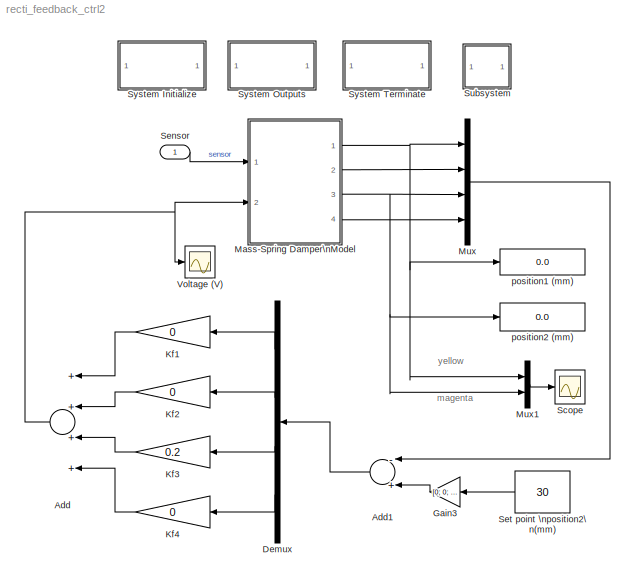
MODEL recti_feedback_ctrl2
KIND model
BLOCK [Sum] Add
  InputSameDT = off
  Inputs = ++++
  OutDataType = sfix(16)
  OutDataTypeMode = Inherit via internal rule
  OutDataTypeStr = Inherit: Inherit via internal rule
  OutScaling = 2^-10
  Ports = [4, 1]
  SID = 2
  SaturateOnIntegerOverflow = off
BLOCK [Sum] Add1
  InputSameDT = off
  Inputs = -+
  OutDataType = sfix(16)
  OutDataTypeMode = Inherit via internal rule
  OutDataTypeStr = Inherit: Inherit via internal rule
  OutScaling = 2^-10
  Ports = [2, 1]
  SID = 3
  SaturateOnIntegerOverflow = off
BLOCK [Demux] Demux
  DisplayOption = bar
  Ports = [1, 4]
  SID = 4
BLOCK [Gain] Gain3
  Gain = [0; 0; 1; 0]
  OutDataType = sfix(16)
  OutDataTypeMode = Inherit via internal rule
  OutDataTypeStr = Inherit: Inherit via internal rule
  OutScaling = 2^0
  ParamDataTypeStr = Inherit: Inherit via internal rule
  ParameterDataType = sfix(16)
  ParameterDataTypeMode = Inherit via internal rule
  ParameterScaling = 2^0
  SID = 5
  SaturateOnIntegerOverflow = off
BLOCK [Gain] Kf1
  Gain = 0
  OutDataType = sfix(16)
  OutDataTypeMode = Inherit via internal rule
  OutDataTypeStr = Inherit: Inherit via internal rule
  OutScaling = 2^0
  ParamDataTypeStr = Inherit: Inherit via internal rule
  ParameterDataType = sfix(16)
  ParameterDataTypeMode = Inherit via internal rule
  ParameterScaling = 2^0
  SID = 6
  SaturateOnIntegerOverflow = off
BLOCK [Gain] Kf2
  Gain = 0
  OutDataType = sfix(16)
  OutDataTypeMode = Inherit via internal rule
  OutDataTypeStr = Inherit: Inherit via internal rule
  OutScaling = 2^0
  ParamDataTypeStr = Inherit: Inherit via internal rule
  ParameterDataType = sfix(16)
  ParameterDataTypeMode = Inherit via internal rule
  ParameterScaling = 2^0
  SID = 7
  SaturateOnIntegerOverflow = off
BLOCK [Gain] Kf3
  Gain = 0.2
  OutDataType = sfix(16)
  OutDataTypeMode = Inherit via internal rule
  OutDataTypeStr = Inherit: Inherit via internal rule
  OutScaling = 2^0
  ParamDataTypeStr = Inherit: Inherit via internal rule
  ParameterDataType = sfix(16)
  ParameterDataTypeMode = Inherit via internal rule
  ParameterScaling = 2^0
  SID = 8
  SaturateOnIntegerOverflow = off
BLOCK [Gain] Kf4
  Gain = 0
  OutDataType = sfix(16)
  OutDataTypeMode = Inherit via internal rule
  OutDataTypeStr = Inherit: Inherit via internal rule
  OutScaling = 2^0
  ParamDataTypeStr = Inherit: Inherit via internal rule
  ParameterDataType = sfix(16)
  ParameterDataTypeMode = Inherit via internal rule
  ParameterScaling = 2^0
  SID = 9
  SampleTime = 0
  SaturateOnIntegerOverflow = off
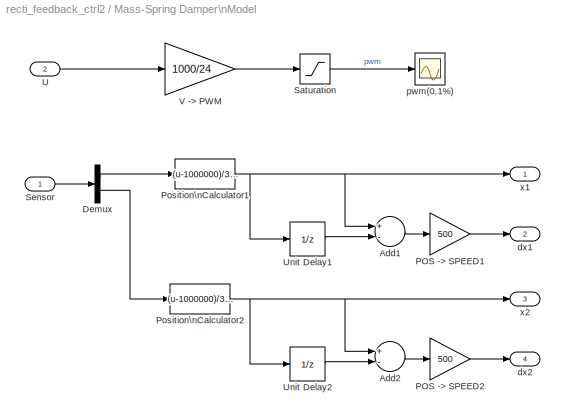
BLOCK [SubSystem] Mass-Spring Damper\nModel
  FunctionWithSeparateData = off
  MaskHideContents = off
  MinAlgLoopOccurrences = off
  Opaque = off
  Ports = [2, 4]
  PropExecContextOutsideSubsystem = off
  RTWSystemCode = Auto
  RequestExecContextInheritance = off
  SID = 10
BLOCK [Sum] Mass-Spring Damper\nModel/Add1
  InputSameDT = off
  Inputs = +-
  OutDataType = sfix(16)
  OutDataTypeMode = Inherit via internal rule
  OutDataTypeStr = Inherit: Inherit via internal rule
  OutScaling = 2^-10
  Ports = [2, 1]
  SID = 13
  SaturateOnIntegerOverflow = off
BLOCK [Sum] Mass-Spring Damper\nModel/Add2
  InputSameDT = off
  Inputs = +-
  OutDataType = sfix(16)
  OutDataTypeMode = Inherit via internal rule
  OutDataTypeStr = Inherit: Inherit via internal rule
  OutScaling = 2^-10
  Ports = [2, 1]
  SID = 14
  SaturateOnIntegerOverflow = off
BLOCK [Demux] Mass-Spring Damper\nModel/Demux
  DisplayOption = bar
  Outputs = 2
  Ports = [1, 2]
  SID = 15
BLOCK [Gain] Mass-Spring Damper\nModel/POS -> SPEED1
  Gain = 500
  OutDataType = sfix(16)
  OutDataTypeMode = Inherit via internal rule
  OutDataTypeStr = Inherit: Inherit via internal rule
  OutScaling = 2^0
  ParameterDataType = sfix(16)
  ParameterScaling = 2^0
  SID = 16
  SaturateOnIntegerOverflow = off
BLOCK [Gain] Mass-Spring Damper\nModel/POS -> SPEED2
  Gain = 500
  OutDataType = sfix(16)
  OutDataTypeMode = Inherit via internal rule
  OutDataTypeStr = Inherit: Inherit via internal rule
  OutScaling = 2^0
  ParameterDataType = sfix(16)
  ParameterScaling = 2^0
  SID = 17
  SaturateOnIntegerOverflow = off
BLOCK [Fcn] Mass-Spring Damper\nModel/Position\nCalculator1
  Expr = (u-1000000)/39.44
  SID = 18
BLOCK [Fcn] Mass-Spring Damper\nModel/Position\nCalculator2
  Expr = (u-1000000)/39.44
  SID = 19
BLOCK [Saturate] Mass-Spring Damper\nModel/Saturation
  LowerLimit = 0
  SID = 20
  UpperLimit = 800
BLOCK [Inport] Mass-Spring Damper\nModel/Sensor
  IconDisplay = Port number
  OutDataType = sfix(16)
  OutScaling = 2^0
  PortDimensions = 2
  SID = 11
BLOCK [Inport] Mass-Spring Damper\nModel/U
  IconDisplay = Port number
  OutDataType = sfix(16)
  OutScaling = 2^0
  Port = 2
  PortDimensions = 1
  SID = 12
BLOCK [UnitDelay] Mass-Spring Damper\nModel/Unit Delay1
  SID = 21
  SampleTime = -1
BLOCK [UnitDelay] Mass-Spring Damper\nModel/Unit Delay2
  SID = 22
  SampleTime = -1
BLOCK [Gain] Mass-Spring Damper\nModel/V -> PWM
  Gain = 1000/24
  OutDataType = sfix(16)
  OutDataTypeMode = Inherit via internal rule
  OutDataTypeStr = Inherit: Inherit via internal rule
  OutScaling = 2^0
  ParameterDataType = sfix(16)
  ParameterScaling = 2^0
  SID = 23
  SaturateOnIntegerOverflow = off
BLOCK [Outport] Mass-Spring Damper\nModel/dx1
  IconDisplay = Port number
  OutDataType = sfix(16)
  OutScaling = 2^0
  Port = 2
  SID = 26
BLOCK [Outport] Mass-Spring Damper\nModel/dx2
  IconDisplay = Port number
  OutDataType = sfix(16)
  OutScaling = 2^0
  Port = 4
  SID = 28
BLOCK [Scope] Mass-Spring Damper\nModel/pwm(0.1%)
  DataFormat = Array
  Floating = off
  LimitDataPoints = off
  NumInputPorts = 1
  Ports = [1]
  SID = 24
  SampleTime = 0
  SaveName = ScopeData3
  SaveToWorkspace = on
  YMax = 1100
  YMin = -1100
BLOCK [Outport] Mass-Spring Damper\nModel/x1
  IconDisplay = Port number
  OutDataType = sfix(16)
  OutScaling = 2^0
  SID = 25
BLOCK [Outport] Mass-Spring Damper\nModel/x2
  IconDisplay = Port number
  OutDataType = sfix(16)
  OutScaling = 2^0
  Port = 3
  SID = 27
BLOCK [Mux] Mux
  DisplayOption = bar
  Ports = [4, 1]
  SID = 29
BLOCK [Mux] Mux1
  DisplayOption = bar
  Inputs = 2
  Ports = [2, 1]
  SID = 30
BLOCK [Scope] Scope
  DataFormat = StructureWithTime
  Floating = off
  LimitDataPoints = off
  NumInputPorts = 1
  Ports = [1]
  SID = 31
  SampleTime = 0
  SaveToWorkspace = on
  YMax = 700
  YMin = 0
BLOCK [Inport] Sensor
  IconDisplay = Port number
  OutDataType = sfix(16)
  OutScaling = 2^0
  PortDimensions = 2
  SID = 1
BLOCK [Constant] Set point \nposition2\n(mm)
  OutDataType = sfix(16)
  OutScaling = 2^0
  SID = 32
  Value = 30
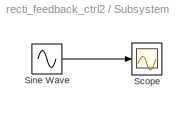
BLOCK [SubSystem] Subsystem
  FunctionWithSeparateData = off
  MaskHideContents = off
  MinAlgLoopOccurrences = off
  Opaque = off
  Ports = []
  PropExecContextOutsideSubsystem = off
  RTWSystemCode = Auto
  RequestExecContextInheritance = off
  SID = 39
  TreatAsAtomicUnit = on
BLOCK [Scope] Subsystem/Scope
  DataFormat = StructureWithTime
  Floating = off
  NumInputPorts = 1
  Ports = [1]
  SID = 40
  SampleTime = 0
  SaveName = ScopeData1
BLOCK [Sin] Subsystem/Sine Wave
  Amplitude = 1
  Bias = 0
  Frequency = 1
  Offset = 0
  Phase = 0
  Ports = [0, 1]
  SID = 41
  SampleTime = 0
  Samples = 10
BLOCK [SubSystem] System Initialize
  CopyFcn = cccopyfcn(gcb)
  FunctionWithSeparateData = off
  MaskDescription = Add code to a systems Initialize function
  MaskDisplay = disp('System\\nInitialize');
  MaskEnableString = off
  MaskHelp = This block contains text fields to insert custom user code sections at the declaration, execution and exit sections of the systems initialize function.  By placing this block inside a subsytem, the custom user code will appear in that subsystems function.
  MaskHideContents = off
  MaskIconFrame = on
  MaskIconOpaque = on
  MaskIconRotate = none
  MaskIconUnits = autoscale
  MaskPortRotate = default
  MaskPromptString = Mask Parameter 1:
  MaskStyleString = edit
  MaskToolTipString = on
  MaskTunableValueString = on
  MaskType = System Initialize
  MaskValueString = 0
  MaskVariables = ShowInLibBrowser=@1;
  MaskVisibilityString = off
  MinAlgLoopOccurrences = off
  Opaque = off
  OpenFcn = ccopenfcn('System Initialize Function')
  Ports = []
  PropExecContextOutsideSubsystem = off
  RTWSystemCode = Auto
  RequestExecContextInheritance = off
  SID = 33
BLOCK [SubSystem] System Outputs
  CopyFcn = cccopyfcn(gcb)
  FunctionWithSeparateData = off
  MaskDescription = Add code to a systems Outputs function
  MaskDisplay = disp('System\\nOutputs');
  MaskEnableString = off
  MaskHelp = This block contains text fields to insert custom user code sections at the declaration, execution and exit sections of the systems outputs function.  By placing this block inside a subsytem, the custom user code will appear in that subsystems function.
  MaskHideContents = off
  MaskIconFrame = on
  MaskIconOpaque = on
  MaskIconRotate = none
  MaskIconUnits = autoscale
  MaskPortRotate = default
  MaskPromptString = Mask Parameter 1:
  MaskStyleString = edit
  MaskToolTipString = on
  MaskTunableValueString = on
  MaskType = System Outputs
  MaskValueString = 0
  MaskVariables = ShowInLibBrowser=@1;
  MaskVisibilityString = off
  MinAlgLoopOccurrences = off
  Opaque = off
  OpenFcn = ccopenfcn('System Outputs Function')
  Ports = []
  PropExecContextOutsideSubsystem = off
  RTWSystemCode = Auto
  RequestExecContextInheritance = off
  SID = 34
BLOCK [SubSystem] System Terminate
  CopyFcn = cccopyfcn(gcb)
  FunctionWithSeparateData = off
  MaskDescription = Add code to a systems Terminate function
  MaskDisplay = disp('System\\nTerminate');
  MaskEnableString = off
  MaskHelp = This block contains text fields to insert custom user code sections at the declaration, execution and exit sections of the systems terminate function.  By placing this block inside a subsytem, the custom user code will appear in that subsystems function.
  MaskHideContents = off
  MaskIconFrame = on
  MaskIconOpaque = on
  MaskIconRotate = none
  MaskIconUnits = autoscale
  MaskPortRotate = default
  MaskPromptString = Mask Parameter 1:
  MaskStyleString = edit
  MaskToolTipString = on
  MaskTunableValueString = on
  MaskType = System Terminate
  MaskValueString = 0
  MaskVariables = ShowInLibBrowser=@1;
  MaskVisibilityString = off
  MinAlgLoopOccurrences = off
  Opaque = off
  OpenFcn = ccopenfcn('System Terminate Function')
  Ports = []
  PropExecContextOutsideSubsystem = off
  RTWSystemCode = Auto
  RequestExecContextInheritance = off
  SID = 35
BLOCK [Scope] Voltage (V)
  DataFormat = Array
  Floating = off
  LimitDataPoints = off
  NumInputPorts = 1
  Ports = [1]
  SID = 36
  SampleTime = 0
  SaveName = ScopeData2
  SaveToWorkspace = on
  YMax = 700
  YMin = 0
BLOCK [Display] position1 (mm)
  Decimation = 1
  Lockdown = off
  Ports = [1]
  SID = 37
BLOCK [Display] position2 (mm)
  Decimation = 1
  Lockdown = off
  Ports = [1]
  SID = 38
ANNOTATION (root): magenta
ANNOTATION (root): yellow
LINE Add1:1 -> Demux:1
NET Add:1 -> Mass-Spring Damper\nModel:2, Voltage (V):1
LINE Demux:1 -> Kf1:1
LINE Demux:2 -> Kf2:1
LINE Demux:3 -> Kf3:1
LINE Demux:4 -> Kf4:1
LINE Gain3:1 -> Add1:2
LINE Kf1:1 -> Add:1
LINE Kf2:1 -> Add:2
LINE Kf3:1 -> Add:3
LINE Kf4:1 -> Add:4
LINE Mass-Spring Damper\nModel/Add1:1 -> Mass-Spring Damper\nModel/POS -> SPEED1:1
LINE Mass-Spring Damper\nModel/Add2:1 -> Mass-Spring Damper\nModel/POS -> SPEED2:1
LINE Mass-Spring Damper\nModel/Demux:1 -> Mass-Spring Damper\nModel/Position\nCalculator1:1
LINE Mass-Spring Damper\nModel/Demux:2 -> Mass-Spring Damper\nModel/Position\nCalculator2:1
LINE Mass-Spring Damper\nModel/POS -> SPEED1:1 -> Mass-Spring Damper\nModel/dx1:1
LINE Mass-Spring Damper\nModel/POS -> SPEED2:1 -> Mass-Spring Damper\nModel/dx2:1
NET Mass-Spring Damper\nModel/Position\nCalculator1:1 -> Mass-Spring Damper\nModel/Add1:1, Mass-Spring Damper\nModel/Unit Delay1:1, Mass-Spring Damper\nModel/x1:1
NET Mass-Spring Damper\nModel/Position\nCalculator2:1 -> Mass-Spring Damper\nModel/Add2:1, Mass-Spring Damper\nModel/Unit Delay2:1, Mass-Spring Damper\nModel/x2:1
LINE Mass-Spring Damper\nModel/Saturation:1 -> Mass-Spring Damper\nModel/pwm(0.1%):1
LINE Mass-Spring Damper\nModel/Sensor:1 -> Mass-Spring Damper\nModel/Demux:1
LINE Mass-Spring Damper\nModel/U:1 -> Mass-Spring Damper\nModel/V -> PWM:1
LINE Mass-Spring Damper\nModel/Unit Delay1:1 -> Mass-Spring Damper\nModel/Add1:2
LINE Mass-Spring Damper\nModel/Unit Delay2:1 -> Mass-Spring Damper\nModel/Add2:2
LINE Mass-Spring Damper\nModel/V -> PWM:1 -> Mass-Spring Damper\nModel/Saturation:1
NET Mass-Spring Damper\nModel:1 -> Mux1:1, Mux:1, position1 (mm):1
LINE Mass-Spring Damper\nModel:2 -> Mux:2
NET Mass-Spring Damper\nModel:3 -> Mux1:2, Mux:3, position2 (mm):1
LINE Mass-Spring Damper\nModel:4 -> Mux:4
LINE Mux1:1 -> Scope:1
LINE Mux:1 -> Add1:1
LINE Sensor:1 -> Mass-Spring Damper\nModel:1
LINE Set point \nposition2\n(mm):1 -> Gain3:1
LINE Subsystem/Sine Wave:1 -> Subsystem/Scope:1
note: NET lines group one-source signal fan-out (src -> all destinations, sorted); 1:1 wires keep LINE
